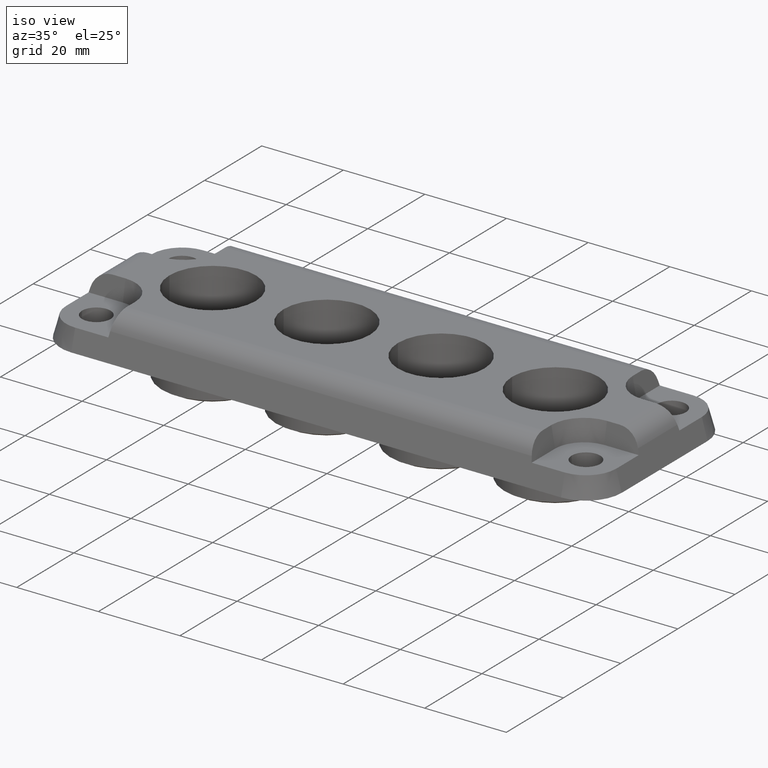
[diagram: clean part render]
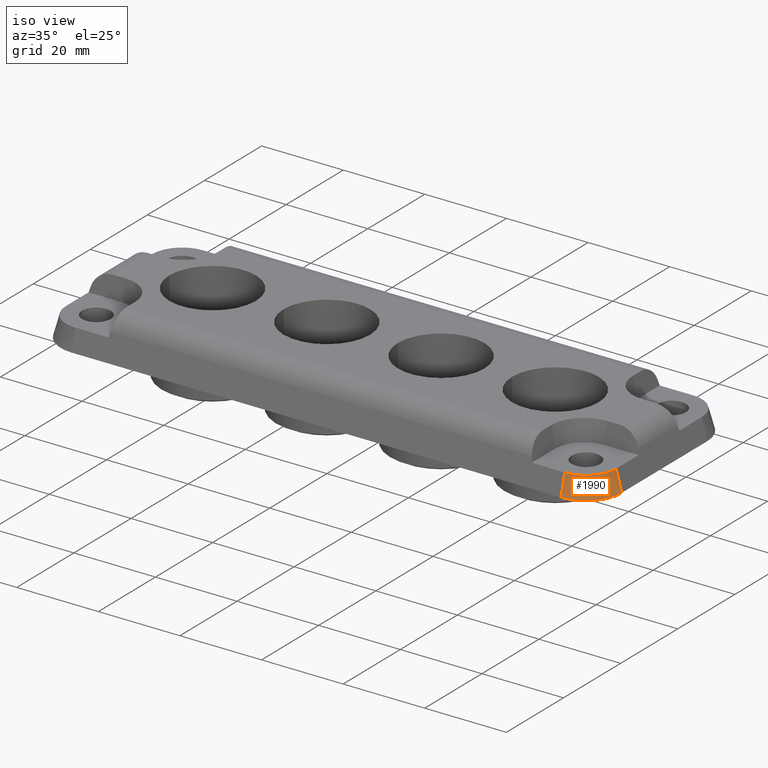
[diagram: same view with one face highlighted and labeled with its STEP entity id]
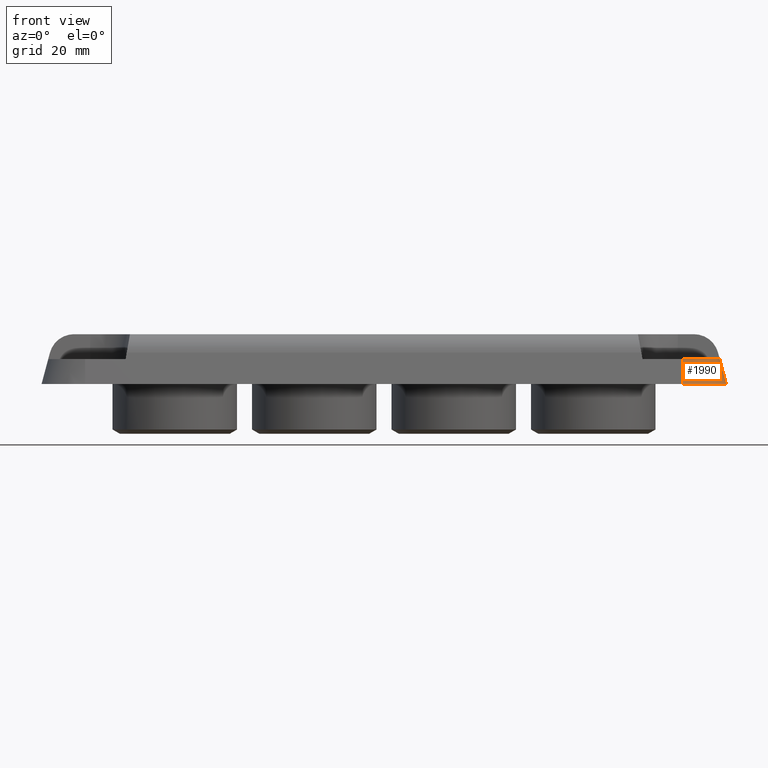
[diagram: same view with one face highlighted and labeled with its STEP entity id]
A machine part, iso view. The second image highlights one B-rep face of the part: STEP entity #1990.
A second angle (front view) of the same face is appended — the face is thin or edge-on in the first view.
In plain terms, the highlighted conical surface has half-angle 15 deg.
Its self-contained STEP definition (entity closure, byte-faithful):
#150 = CARTESIAN_POINT ( 'NONE',  ( 68.75000000000005700, -14.99999999999995700, 0.0000000000000000000 ) ) ;
#174 = EDGE_CURVE ( 'NONE', #1181, #271, #1166, .T. ) ;
#264 = CARTESIAN_POINT ( 'NONE',  ( 60.00000000000007800, -14.99999999999995700, 0.0000000000000000000 ) ) ;
#271 = VERTEX_POINT ( 'NONE', #2773 ) ;
#512 = CARTESIAN_POINT ( 'NONE',  ( 60.00000000000007800, -23.74999999999999300, 0.0000000000000000000 ) ) ;
#592 = VECTOR ( 'NONE', #3924, 1000.000000000000200 ) ;
#757 = DIRECTION ( 'NONE',  ( 0.0000000000000000000, -0.2588190451025215700, -0.9659258262890680900 ) ) ;
#823 = VECTOR ( 'NONE', #757, 1000.000000000000200 ) ;
#884 = DIRECTION ( 'NONE',  ( 3.081487911019577400E-033, 3.118160315277577000E-032, 1.000000000000000000 ) ) ;
#1166 = CIRCLE ( 'NONE', #1949, 8.750000000000021300 ) ;
#1181 = VERTEX_POINT ( 'NONE', #512 ) ;
#1198 = LINE ( 'NONE', #3590, #823 ) ;
#1249 = EDGE_CURVE ( 'NONE', #2708, #2226, #3369, .T. ) ;
#1560 = AXIS2_PLACEMENT_3D ( 'NONE', #3974, #2424, #2050 ) ;
#1587 = AXIS2_PLACEMENT_3D ( 'NONE', #264, #2141, #3088 ) ;
#1949 = AXIS2_PLACEMENT_3D ( 'NONE', #2421, #884, #2362 ) ;
#1990 = ADVANCED_FACE ( 'NONE', ( #4054 ), #3069, .T. ) ;
#2020 = ORIENTED_EDGE ( 'NONE', *, *, #1249, .T. ) ;
#2050 = DIRECTION ( 'NONE',  ( -1.000000000000000000, 0.0000000000000000000, 0.0000000000000000000 ) ) ;
#2141 = DIRECTION ( 'NONE',  ( -3.081487911019577400E-033, -3.118160315277577000E-032, -1.000000000000000000 ) ) ;
#2157 = EDGE_CURVE ( 'NONE', #2226, #1181, #1198, .T. ) ;
#2226 = VERTEX_POINT ( 'NONE', #3310 ) ;
#2280 = EDGE_LOOP ( 'NONE', ( #2583, #2020, #3258, #3207 ) ) ;
#2362 = DIRECTION ( 'NONE',  ( -1.000000000000000000, 0.0000000000000000000, -3.081487911019576000E-033 ) ) ;
#2421 = CARTESIAN_POINT ( 'NONE',  ( 60.00000000000007800, -14.99999999999995700, 0.0000000000000000000 ) ) ;
#2424 = DIRECTION ( 'NONE',  ( -3.081487911019577400E-033, -3.118160315277577000E-032, -1.000000000000000000 ) ) ;
#2583 = ORIENTED_EDGE ( 'NONE', *, *, #3923, .F. ) ;
#2708 = VERTEX_POINT ( 'NONE', #3686 ) ;
#2773 = CARTESIAN_POINT ( 'NONE',  ( 68.75000000000007100, -14.99999999999995700, 0.0000000000000000000 ) ) ;
#2930 = LINE ( 'NONE', #150, #592 ) ;
#3069 = CONICAL_SURFACE ( 'NONE', #1587, 8.750000000000021300, 0.2617993877991500700 ) ;
#3088 = DIRECTION ( 'NONE',  ( -1.000000000000000000, 0.0000000000000000000, -3.081487911019576000E-033 ) ) ;
#3207 = ORIENTED_EDGE ( 'NONE', *, *, #174, .T. ) ;
#3258 = ORIENTED_EDGE ( 'NONE', *, *, #2157, .T. ) ;
#3310 = CARTESIAN_POINT ( 'NONE',  ( 60.00000000000007800, -22.41025403784435700, 5.000000000000004400 ) ) ;
#3369 = CIRCLE ( 'NONE', #1560, 7.410254037844405900 ) ;
#3590 = CARTESIAN_POINT ( 'NONE',  ( 60.00000000000007800, -23.74999999999999300, 0.0000000000000000000 ) ) ;
#3686 = CARTESIAN_POINT ( 'NONE',  ( 67.41025403784443900, -14.99999999999995700, 5.000000000000004400 ) ) ;
#3923 = EDGE_CURVE ( 'NONE', #2708, #271, #2930, .T. ) ;
#3924 = DIRECTION ( 'NONE',  ( 0.2588190451025215200, -2.773339119917619100E-032, -0.9659258262890680900 ) ) ;
#3974 = CARTESIAN_POINT ( 'NONE',  ( 60.00000000000007800, -14.99999999999995700, 5.000000000000004400 ) ) ;
#4054 = FACE_OUTER_BOUND ( 'NONE', #2280, .T. ) ;